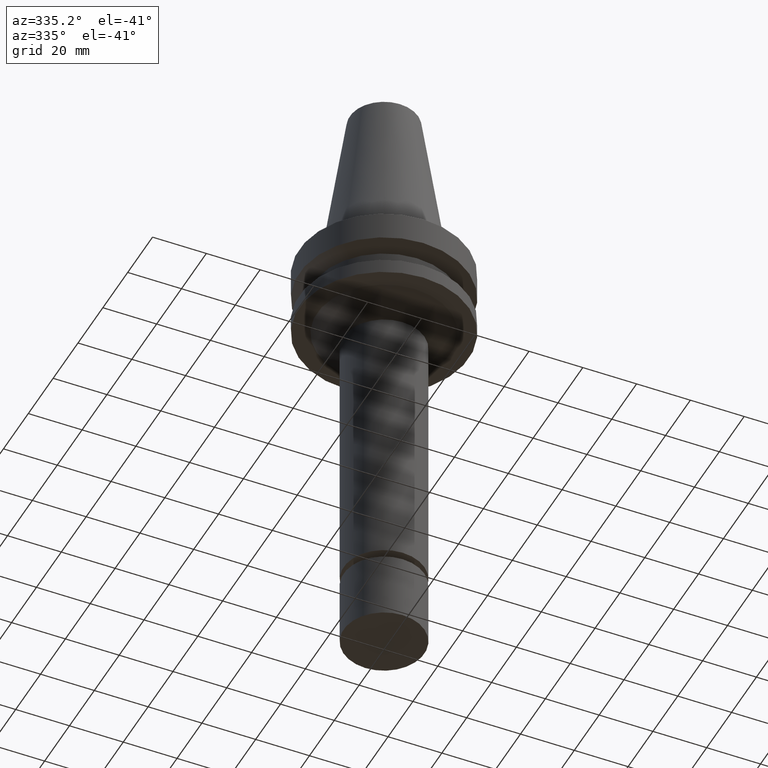
[diagram: clean part render]
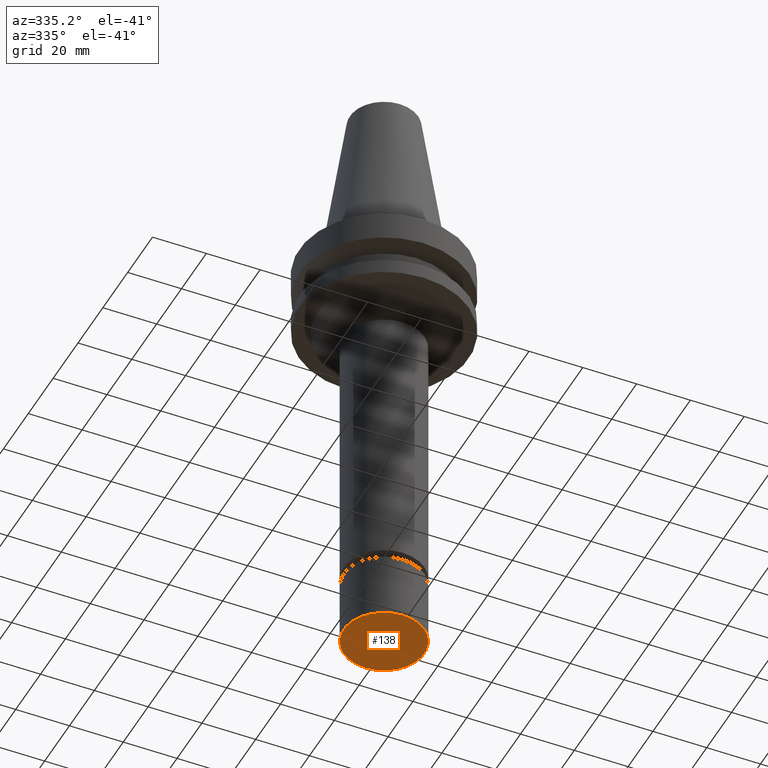
[diagram: same view with one face highlighted and labeled with its STEP entity id]
A machine part, auxiliary view. The second image highlights one B-rep face of the part: STEP entity #138.
In plain terms, the highlighted planar face has unit normal (0, 0, -1).
Its self-contained STEP definition (entity closure, byte-faithful):
#78=EDGE_CURVE('Unnamed[1]',#206,#206,#207,.T.);
#138=ADVANCED_FACE('Unnamed[1]',(#296),#297,.T.);
#206=VERTEX_POINT('',#383);
#207=CIRCLE('',#384,14.9999999999999);
#296=FACE_OUTER_BOUND('',#494,.T.);
#297=PLANE('',#495);
#383=CARTESIAN_POINT('',(1.01033360929657E-014,15.0,-165.0));
#384=AXIS2_PLACEMENT_3D('',#586,#587,#588);
#494=EDGE_LOOP('',(#683));
#495=AXIS2_PLACEMENT_3D('',#684,#685,#686);
#586=CARTESIAN_POINT('',(1.01033360929657E-014,6.19482897702596E-014,-165.0));
#587=DIRECTION('',(6.12323399573677E-017,-6.57737920631027E-017,-1.0));
#588=DIRECTION('',(-7.99669534875906E-034,1.0,-6.57737920631027E-017));
#683=ORIENTED_EDGE('',*,*,#78,.T.);
#684=CARTESIAN_POINT('',(1.01033360929657E-014,7.50000000000004,-165.0));
#685=DIRECTION('',(6.12323399573677E-017,1.22464679914735E-016,-1.0));
#686=DIRECTION('',(-1.23259516440783E-032,1.0,1.22464679914735E-016));